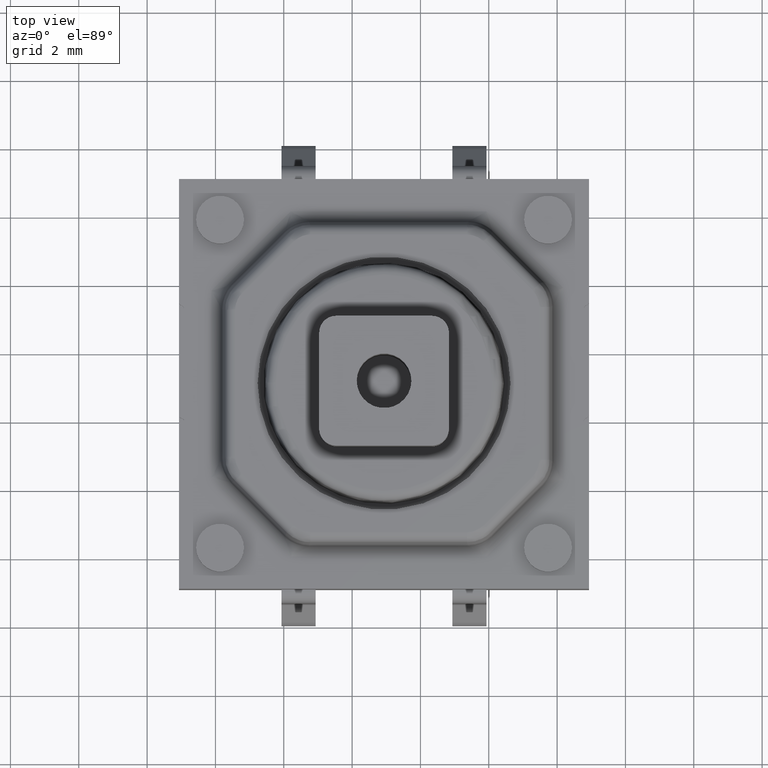
[diagram: clean part render]
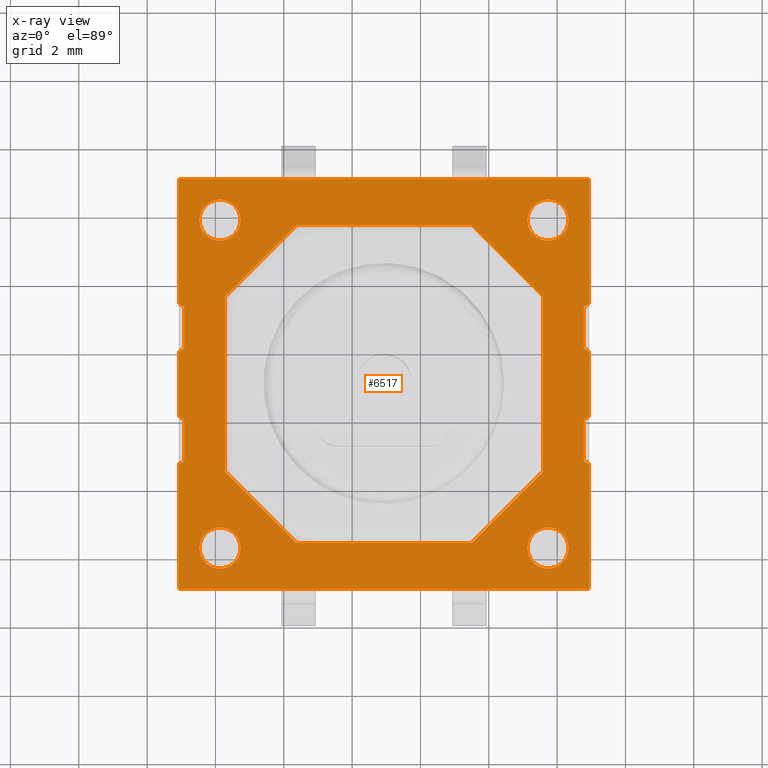
[diagram: x-ray — body ghosted, one internal face saturated and labeled with its STEP entity id]
A machine part, top view, then the same camera in x-ray: the body is ghosted and one INTERNAL B-rep face — a face not visible from any outside direction — is saturated and labeled: STEP entity #6517.
In plain terms, the highlighted planar face has unit normal (0, 0, 1).
Its self-contained STEP definition (entity closure, byte-faithful):
#221=FACE_BOUND('',#1030,.T.);
#222=FACE_BOUND('',#1031,.T.);
#223=FACE_BOUND('',#1032,.T.);
#224=FACE_BOUND('',#1033,.T.);
#225=FACE_BOUND('',#1034,.T.);
#353=PLANE('',#7095);
#608=FACE_OUTER_BOUND('',#1029,.T.);
#1029=EDGE_LOOP('',(#5208,#5209,#5210,#5211,#5212,#5213,#5214,#5215,#5216,
#5217,#5218,#5219,#5220,#5221,#5222,#5223,#5224,#5225,#5226,#5227,#5228,
#5229,#5230,#5231,#5232,#5233,#5234,#5235));
#1030=EDGE_LOOP('',(#5236));
#1031=EDGE_LOOP('',(#5237));
#1032=EDGE_LOOP('',(#5238));
#1033=EDGE_LOOP('',(#5239));
#1034=EDGE_LOOP('',(#5240,#5241,#5242,#5243,#5244,#5245,#5246,#5247));
#1549=LINE('',#10388,#2078);
#1552=LINE('',#10397,#2081);
#1558=LINE('',#10443,#2087);
#1564=LINE('',#10488,#2093);
#1570=LINE('',#10533,#2099);
#1576=LINE('',#10578,#2105);
#1582=LINE('',#10623,#2111);
#1588=LINE('',#10667,#2117);
#1595=LINE('',#10713,#2124);
#1596=LINE('',#10715,#2125);
#1597=LINE('',#10717,#2126);
#1598=LINE('',#10723,#2127);
#1599=LINE('',#10729,#2128);
#1600=LINE('',#10735,#2129);
#1601=LINE('',#10741,#2130);
#1602=LINE('',#10743,#2131);
#1603=LINE('',#10745,#2132);
#1604=LINE('',#10751,#2133);
#1605=LINE('',#10757,#2134);
#1606=LINE('',#10763,#2135);
#2078=VECTOR('',#8327,0.393700787401575);
#2081=VECTOR('',#8336,0.393700787401575);
#2087=VECTOR('',#8366,0.393700787401575);
#2093=VECTOR('',#8396,0.393700787401575);
#2099=VECTOR('',#8426,0.393700787401575);
#2105=VECTOR('',#8456,0.393700787401575);
#2111=VECTOR('',#8486,0.393700787401575);
#2117=VECTOR('',#8516,0.393700787401575);
#2124=VECTOR('',#8549,0.393700787401575);
#2125=VECTOR('',#8550,0.393700787401575);
#2126=VECTOR('',#8551,0.393700787401575);
#2127=VECTOR('',#8556,0.393700787401575);
#2128=VECTOR('',#8561,0.393700787401575);
#2129=VECTOR('',#8566,0.393700787401575);
#2130=VECTOR('',#8571,0.393700787401575);
#2131=VECTOR('',#8572,0.393700787401575);
#2132=VECTOR('',#8573,0.393700787401575);
#2133=VECTOR('',#8578,0.393700787401575);
#2134=VECTOR('',#8583,0.393700787401575);
#2135=VECTOR('',#8588,0.393700787401575);
#2455=CIRCLE('',#7096,0.00393700787401575);
#2456=CIRCLE('',#7097,0.00393700787401575);
#2457=CIRCLE('',#7098,0.00393700787401575);
#2458=CIRCLE('',#7099,0.00393700787401575);
#2459=CIRCLE('',#7100,0.00393700787401575);
#2460=CIRCLE('',#7101,0.00393700787401575);
#2461=CIRCLE('',#7102,0.00393700787401575);
#2462=CIRCLE('',#7103,0.00393700787401575);
#2463=CIRCLE('',#7104,0.00393700787401575);
#2464=CIRCLE('',#7105,0.00393700787401575);
#2465=CIRCLE('',#7106,0.00393700787401575);
#2466=CIRCLE('',#7107,0.00393700787401575);
#2467=CIRCLE('',#7108,0.00393700787401575);
#2468=CIRCLE('',#7109,0.00393700787401575);
#2469=CIRCLE('',#7110,0.00393700787401575);
#2470=CIRCLE('',#7111,0.00393700787401575);
#2471=CIRCLE('',#7112,0.0236220472440945);
#2472=CIRCLE('',#7113,0.0236220472440945);
#2473=CIRCLE('',#7114,0.0236220472440945);
#2474=CIRCLE('',#7115,0.0236220472440945);
#2928=VERTEX_POINT('',#10383);
#2929=VERTEX_POINT('',#10387);
#2932=VERTEX_POINT('',#10395);
#2940=VERTEX_POINT('',#10442);
#2947=VERTEX_POINT('',#10487);
#2954=VERTEX_POINT('',#10532);
#2961=VERTEX_POINT('',#10577);
#2968=VERTEX_POINT('',#10622);
#2978=VERTEX_POINT('',#10709);
#2979=VERTEX_POINT('',#10710);
#2980=VERTEX_POINT('',#10712);
#2981=VERTEX_POINT('',#10714);
#2982=VERTEX_POINT('',#10716);
#2983=VERTEX_POINT('',#10718);
#2984=VERTEX_POINT('',#10720);
#2985=VERTEX_POINT('',#10722);
#2986=VERTEX_POINT('',#10724);
#2987=VERTEX_POINT('',#10726);
#2988=VERTEX_POINT('',#10728);
#2989=VERTEX_POINT('',#10730);
#2990=VERTEX_POINT('',#10732);
#2991=VERTEX_POINT('',#10734);
#2992=VERTEX_POINT('',#10736);
#2993=VERTEX_POINT('',#10738);
#2994=VERTEX_POINT('',#10740);
#2995=VERTEX_POINT('',#10742);
#2996=VERTEX_POINT('',#10744);
#2997=VERTEX_POINT('',#10746);
#2998=VERTEX_POINT('',#10748);
#2999=VERTEX_POINT('',#10750);
#3000=VERTEX_POINT('',#10752);
#3001=VERTEX_POINT('',#10754);
#3002=VERTEX_POINT('',#10756);
#3003=VERTEX_POINT('',#10758);
#3004=VERTEX_POINT('',#10760);
#3005=VERTEX_POINT('',#10762);
#3006=VERTEX_POINT('',#10765);
#3007=VERTEX_POINT('',#10767);
#3008=VERTEX_POINT('',#10769);
#3009=VERTEX_POINT('',#10771);
#3665=EDGE_CURVE('',#2928,#2929,#1549,.T.);
#3670=EDGE_CURVE('',#2932,#2928,#1552,.T.);
#3683=EDGE_CURVE('',#2929,#2940,#1558,.T.);
#3696=EDGE_CURVE('',#2940,#2947,#1564,.T.);
#3709=EDGE_CURVE('',#2947,#2954,#1570,.T.);
#3722=EDGE_CURVE('',#2954,#2961,#1576,.T.);
#3735=EDGE_CURVE('',#2961,#2968,#1582,.T.);
#3748=EDGE_CURVE('',#2968,#2932,#1588,.T.);
#3760=EDGE_CURVE('',#2978,#2979,#2455,.T.);
#3761=EDGE_CURVE('',#2978,#2980,#1595,.T.);
#3762=EDGE_CURVE('',#2980,#2981,#1596,.T.);
#3763=EDGE_CURVE('',#2981,#2982,#1597,.T.);
#3764=EDGE_CURVE('',#2983,#2982,#2456,.T.);
#3765=EDGE_CURVE('',#2984,#2983,#2457,.T.);
#3766=EDGE_CURVE('',#2984,#2985,#1598,.T.);
#3767=EDGE_CURVE('',#2986,#2985,#2458,.T.);
#3768=EDGE_CURVE('',#2987,#2986,#2459,.T.);
#3769=EDGE_CURVE('',#2987,#2988,#1599,.T.);
#3770=EDGE_CURVE('',#2989,#2988,#2460,.T.);
#3771=EDGE_CURVE('',#2990,#2989,#2461,.T.);
#3772=EDGE_CURVE('',#2990,#2991,#1600,.T.);
#3773=EDGE_CURVE('',#2992,#2991,#2462,.T.);
#3774=EDGE_CURVE('',#2993,#2992,#2463,.T.);
#3775=EDGE_CURVE('',#2993,#2994,#1601,.T.);
#3776=EDGE_CURVE('',#2994,#2995,#1602,.T.);
#3777=EDGE_CURVE('',#2995,#2996,#1603,.T.);
#3778=EDGE_CURVE('',#2997,#2996,#2464,.T.);
#3779=EDGE_CURVE('',#2998,#2997,#2465,.T.);
#3780=EDGE_CURVE('',#2998,#2999,#1604,.T.);
#3781=EDGE_CURVE('',#3000,#2999,#2466,.T.);
#3782=EDGE_CURVE('',#3001,#3000,#2467,.T.);
#3783=EDGE_CURVE('',#3001,#3002,#1605,.T.);
#3784=EDGE_CURVE('',#3003,#3002,#2468,.T.);
#3785=EDGE_CURVE('',#3004,#3003,#2469,.T.);
#3786=EDGE_CURVE('',#3004,#3005,#1606,.T.);
#3787=EDGE_CURVE('',#2979,#3005,#2470,.T.);
#3788=EDGE_CURVE('',#3006,#3006,#2471,.T.);
#3789=EDGE_CURVE('',#3007,#3007,#2472,.T.);
#3790=EDGE_CURVE('',#3008,#3008,#2473,.T.);
#3791=EDGE_CURVE('',#3009,#3009,#2474,.T.);
#5208=ORIENTED_EDGE('',*,*,#3760,.F.);
#5209=ORIENTED_EDGE('',*,*,#3761,.T.);
#5210=ORIENTED_EDGE('',*,*,#3762,.T.);
#5211=ORIENTED_EDGE('',*,*,#3763,.T.);
#5212=ORIENTED_EDGE('',*,*,#3764,.F.);
#5213=ORIENTED_EDGE('',*,*,#3765,.F.);
#5214=ORIENTED_EDGE('',*,*,#3766,.T.);
#5215=ORIENTED_EDGE('',*,*,#3767,.F.);
#5216=ORIENTED_EDGE('',*,*,#3768,.F.);
#5217=ORIENTED_EDGE('',*,*,#3769,.T.);
#5218=ORIENTED_EDGE('',*,*,#3770,.F.);
#5219=ORIENTED_EDGE('',*,*,#3771,.F.);
#5220=ORIENTED_EDGE('',*,*,#3772,.T.);
#5221=ORIENTED_EDGE('',*,*,#3773,.F.);
#5222=ORIENTED_EDGE('',*,*,#3774,.F.);
#5223=ORIENTED_EDGE('',*,*,#3775,.T.);
#5224=ORIENTED_EDGE('',*,*,#3776,.T.);
#5225=ORIENTED_EDGE('',*,*,#3777,.T.);
#5226=ORIENTED_EDGE('',*,*,#3778,.F.);
#5227=ORIENTED_EDGE('',*,*,#3779,.F.);
#5228=ORIENTED_EDGE('',*,*,#3780,.T.);
#5229=ORIENTED_EDGE('',*,*,#3781,.F.);
#5230=ORIENTED_EDGE('',*,*,#3782,.F.);
#5231=ORIENTED_EDGE('',*,*,#3783,.T.);
#5232=ORIENTED_EDGE('',*,*,#3784,.F.);
#5233=ORIENTED_EDGE('',*,*,#3785,.F.);
#5234=ORIENTED_EDGE('',*,*,#3786,.T.);
#5235=ORIENTED_EDGE('',*,*,#3787,.F.);
#5236=ORIENTED_EDGE('',*,*,#3788,.T.);
#5237=ORIENTED_EDGE('',*,*,#3789,.T.);
#5238=ORIENTED_EDGE('',*,*,#3790,.T.);
#5239=ORIENTED_EDGE('',*,*,#3791,.T.);
#5240=ORIENTED_EDGE('',*,*,#3670,.F.);
#5241=ORIENTED_EDGE('',*,*,#3748,.F.);
#5242=ORIENTED_EDGE('',*,*,#3735,.F.);
#5243=ORIENTED_EDGE('',*,*,#3722,.F.);
#5244=ORIENTED_EDGE('',*,*,#3709,.F.);
#5245=ORIENTED_EDGE('',*,*,#3696,.F.);
#5246=ORIENTED_EDGE('',*,*,#3683,.F.);
#5247=ORIENTED_EDGE('',*,*,#3665,.F.);
#6517=ADVANCED_FACE('',(#608,#221,#222,#223,#224,#225),#353,.F.);
#7095=AXIS2_PLACEMENT_3D('',#10708,#8545,#8546);
#7096=AXIS2_PLACEMENT_3D('',#10711,#8547,#8548);
#7097=AXIS2_PLACEMENT_3D('',#10719,#8552,#8553);
#7098=AXIS2_PLACEMENT_3D('',#10721,#8554,#8555);
#7099=AXIS2_PLACEMENT_3D('',#10725,#8557,#8558);
#7100=AXIS2_PLACEMENT_3D('',#10727,#8559,#8560);
#7101=AXIS2_PLACEMENT_3D('',#10731,#8562,#8563);
#7102=AXIS2_PLACEMENT_3D('',#10733,#8564,#8565);
#7103=AXIS2_PLACEMENT_3D('',#10737,#8567,#8568);
#7104=AXIS2_PLACEMENT_3D('',#10739,#8569,#8570);
#7105=AXIS2_PLACEMENT_3D('',#10747,#8574,#8575);
#7106=AXIS2_PLACEMENT_3D('',#10749,#8576,#8577);
#7107=AXIS2_PLACEMENT_3D('',#10753,#8579,#8580);
#7108=AXIS2_PLACEMENT_3D('',#10755,#8581,#8582);
#7109=AXIS2_PLACEMENT_3D('',#10759,#8584,#8585);
#7110=AXIS2_PLACEMENT_3D('',#10761,#8586,#8587);
#7111=AXIS2_PLACEMENT_3D('',#10764,#8589,#8590);
#7112=AXIS2_PLACEMENT_3D('',#10766,#8591,#8592);
#7113=AXIS2_PLACEMENT_3D('',#10768,#8593,#8594);
#7114=AXIS2_PLACEMENT_3D('',#10770,#8595,#8596);
#7115=AXIS2_PLACEMENT_3D('',#10772,#8597,#8598);
#8327=DIRECTION('',(5.02396351665181E-17,-1.,1.11022302462516E-16));
#8336=DIRECTION('',(0.707106781186548,-0.707106781186547,1.96261557335472E-17));
#8366=DIRECTION('',(-0.707106781186548,-0.707106781186547,1.3738309013483E-16));
#8396=DIRECTION('',(-1.,-2.6174120796207E-16,8.32667268468868E-17));
#8426=DIRECTION('',(-0.707106781186548,0.707106781186547,-1.96261557335472E-17));
#8456=DIRECTION('',(-5.02396351665181E-17,1.,-1.11022302462516E-16));
#8486=DIRECTION('',(0.707106781186548,0.707106781186547,-1.3738309013483E-16));
#8516=DIRECTION('',(1.,5.02396351665181E-17,-8.32667268468868E-17));
#8545=DIRECTION('center_axis',(8.32667268468867E-17,1.11022302462516E-16,
1.));
#8546=DIRECTION('ref_axis',(-1.,5.55111512312578E-17,8.32667268468867E-17));
#8547=DIRECTION('center_axis',(8.32667268468867E-17,1.11022302462516E-16,
1.));
#8548=DIRECTION('ref_axis',(-1.,5.55111512312578E-17,8.32667268468867E-17));
#8549=DIRECTION('',(-5.55111512312578E-17,-1.,1.11022302462516E-16));
#8550=DIRECTION('',(-1.,5.55111512312578E-17,8.32667268468867E-17));
#8551=DIRECTION('',(5.55111512312578E-17,1.,-1.11022302462516E-16));
#8552=DIRECTION('center_axis',(8.32667268468867E-17,1.11022302462516E-16,
1.));
#8553=DIRECTION('ref_axis',(1.,-5.55111512312578E-17,-8.32667268468867E-17));
#8554=DIRECTION('center_axis',(-8.32667268468867E-17,-1.11022302462516E-16,
-1.));
#8555=DIRECTION('ref_axis',(0.707106781186547,-0.707106781186547,1.96261557335472E-17));
#8556=DIRECTION('',(5.55111512312578E-17,1.,-1.11022302462516E-16));
#8557=DIRECTION('center_axis',(-8.32667268468867E-17,-1.11022302462516E-16,
-1.));
#8558=DIRECTION('ref_axis',(0.707106781186555,0.70710678118654,-1.3738309013483E-16));
#8559=DIRECTION('center_axis',(8.32667268468867E-17,1.11022302462516E-16,
1.));
#8560=DIRECTION('ref_axis',(1.,-5.55111512312578E-17,-8.32667268468867E-17));
#8561=DIRECTION('',(5.55111512312578E-17,1.,-1.11022302462516E-16));
#8562=DIRECTION('center_axis',(8.32667268468867E-17,1.11022302462516E-16,
1.));
#8563=DIRECTION('ref_axis',(1.,-5.55111512312578E-17,-8.32667268468867E-17));
#8564=DIRECTION('center_axis',(-8.32667268468867E-17,-1.11022302462516E-16,
-1.));
#8565=DIRECTION('ref_axis',(0.707106781186548,-0.707106781186546,1.9626155733547E-17));
#8566=DIRECTION('',(5.55111512312578E-17,1.,-1.11022302462516E-16));
#8567=DIRECTION('center_axis',(-8.32667268468867E-17,-1.11022302462516E-16,
-1.));
#8568=DIRECTION('ref_axis',(0.707106781186547,0.707106781186547,-1.3738309013483E-16));
#8569=DIRECTION('center_axis',(8.32667268468867E-17,1.11022302462516E-16,
1.));
#8570=DIRECTION('ref_axis',(1.,-5.55111512312578E-17,-8.32667268468867E-17));
#8571=DIRECTION('',(5.55111512312578E-17,1.,-1.11022302462516E-16));
#8572=DIRECTION('',(1.,-5.55111512312578E-17,-8.32667268468867E-17));
#8573=DIRECTION('',(-5.55111512312578E-17,-1.,1.11022302462516E-16));
#8574=DIRECTION('center_axis',(8.32667268468867E-17,1.11022302462516E-16,
1.));
#8575=DIRECTION('ref_axis',(0.707106781186547,-0.707106781186547,1.96261557335472E-17));
#8576=DIRECTION('center_axis',(-8.32667268468867E-17,-1.11022302462516E-16,
-1.));
#8577=DIRECTION('ref_axis',(1.,-5.55111512312578E-17,-8.32667268468867E-17));
#8578=DIRECTION('',(-5.55111512312578E-17,-1.,1.11022302462516E-16));
#8579=DIRECTION('center_axis',(-8.32667268468867E-17,-1.11022302462516E-16,
-1.));
#8580=DIRECTION('ref_axis',(-0.707106781186555,-0.70710678118654,1.3738309013483E-16));
#8581=DIRECTION('center_axis',(8.32667268468867E-17,1.11022302462516E-16,
1.));
#8582=DIRECTION('ref_axis',(-1.,5.55111512312578E-17,8.32667268468867E-17));
#8583=DIRECTION('',(-5.55111512312578E-17,-1.,1.11022302462516E-16));
#8584=DIRECTION('center_axis',(8.32667268468867E-17,1.11022302462516E-16,
1.));
#8585=DIRECTION('ref_axis',(0.707106781186548,-0.707106781186546,1.9626155733547E-17));
#8586=DIRECTION('center_axis',(-8.32667268468867E-17,-1.11022302462516E-16,
-1.));
#8587=DIRECTION('ref_axis',(1.,-5.55111512312578E-17,-8.32667268468867E-17));
#8588=DIRECTION('',(-5.55111512312578E-17,-1.,1.11022302462516E-16));
#8589=DIRECTION('center_axis',(-8.32667268468867E-17,-1.11022302462516E-16,
-1.));
#8590=DIRECTION('ref_axis',(-0.707106781186555,-0.70710678118654,1.3738309013483E-16));
#8591=DIRECTION('center_axis',(8.32667268468867E-17,1.11022302462516E-16,
1.));
#8592=DIRECTION('ref_axis',(1.,-5.55111512312578E-17,-8.32667268468867E-17));
#8593=DIRECTION('center_axis',(8.32667268468867E-17,1.11022302462516E-16,
1.));
#8594=DIRECTION('ref_axis',(1.,-5.55111512312578E-17,-8.32667268468867E-17));
#8595=DIRECTION('center_axis',(8.32667268468867E-17,1.11022302462516E-16,
1.));
#8596=DIRECTION('ref_axis',(1.,-5.55111512312578E-17,-8.32667268468867E-17));
#8597=DIRECTION('center_axis',(8.32667268468867E-17,1.11022302462516E-16,
1.));
#8598=DIRECTION('ref_axis',(1.,-5.55111512312578E-17,-8.32667268468867E-17));
#10383=CARTESIAN_POINT('',(-0.0163922233613935,-0.0941469958097537,0.13119343396936));
#10387=CARTESIAN_POINT('',(-0.0163922233613934,-0.295917796447768,0.13119343396936));
#10388=CARTESIAN_POINT('',(-0.0163922233613934,-0.246698167830705,0.13119343396936));
#10395=CARTESIAN_POINT('',(-0.0985776891841184,-0.0119615299870287,0.13119343396936));
#10397=CARTESIAN_POINT('',(-0.0360737476355389,-0.0744654715356082,0.13119343396936));
#10442=CARTESIAN_POINT('',(-0.0985776891841184,-0.378103262270493,0.13119343396936));
#10443=CARTESIAN_POINT('',(-0.078896164909973,-0.358421737996348,0.13119343396936));
#10487=CARTESIAN_POINT('',(-0.300348489822133,-0.378103262270493,0.13119343396936));
#10488=CARTESIAN_POINT('',(-0.25112886120507,-0.378103262270493,0.13119343396936));
#10532=CARTESIAN_POINT('',(-0.382533955644858,-0.295917796447768,0.13119343396936));
#10533=CARTESIAN_POINT('',(-0.362852431370713,-0.315599320721914,0.13119343396936));
#10577=CARTESIAN_POINT('',(-0.382533955644858,-0.0941469958097537,0.13119343396936));
#10578=CARTESIAN_POINT('',(-0.382533955644858,-0.143366624426817,0.13119343396936));
#10622=CARTESIAN_POINT('',(-0.300348489822133,-0.0119615299870287,0.13119343396936));
#10623=CARTESIAN_POINT('',(-0.320030014096279,-0.0316430542611742,0.13119343396936));
#10667=CARTESIAN_POINT('',(-0.147797317801182,-0.0119615299870287,0.13119343396936));
#10708=CARTESIAN_POINT('Origin',(-0.199463089503126,-0.195032396128761,
0.13119343396936));
#10709=CARTESIAN_POINT('',(0.0367573829378192,-0.289270552322083,0.13119343396936));
#10710=CARTESIAN_POINT('',(0.0338046270323074,-0.285458560839595,0.13119343396936));
#10711=CARTESIAN_POINT('Origin',(0.0328203750638034,-0.289270552322083,
0.13119343396936));
#10712=CARTESIAN_POINT('',(0.0367573829378192,-0.431252868569706,0.13119343396936));
#10713=CARTESIAN_POINT('',(0.0367573829378192,0.0411880763121839,0.13119343396936));
#10714=CARTESIAN_POINT('',(-0.435683561944071,-0.431252868569706,0.13119343396936));
#10715=CARTESIAN_POINT('',(0.0367573829378192,-0.431252868569706,0.13119343396936));
#10716=CARTESIAN_POINT('',(-0.435683561944071,-0.289270552322083,0.13119343396936));
#10717=CARTESIAN_POINT('',(-0.435683561944071,-0.431252868569706,0.13119343396936));
#10718=CARTESIAN_POINT('',(-0.432730806038559,-0.285458560839595,0.13119343396936));
#10719=CARTESIAN_POINT('Origin',(-0.431746554070055,-0.289270552322083,
0.13119343396936));
#10720=CARTESIAN_POINT('',(-0.429778050133047,-0.281646569357107,0.13119343396936));
#10721=CARTESIAN_POINT('Origin',(-0.433715058007063,-0.281646569357107,
0.13119343396936));
#10722=CARTESIAN_POINT('',(-0.429778050133047,-0.238339482742934,0.13119343396936));
#10723=CARTESIAN_POINT('',(-0.429778050133047,-0.21471743549884,0.13119343396936));
#10724=CARTESIAN_POINT('',(-0.432730806038559,-0.234527491260447,0.13119343396936));
#10725=CARTESIAN_POINT('Origin',(-0.433715058007063,-0.238339482742934,
0.13119343396936));
#10726=CARTESIAN_POINT('',(-0.435683561944071,-0.230715499777959,0.13119343396936));
#10727=CARTESIAN_POINT('Origin',(-0.431746554070055,-0.230715499777959,
0.13119343396936));
#10728=CARTESIAN_POINT('',(-0.435683561944071,-0.159349292479563,0.13119343396936));
#10729=CARTESIAN_POINT('',(-0.435683561944071,-0.431252868569706,0.13119343396936));
#10730=CARTESIAN_POINT('',(-0.432730806038559,-0.155537300997075,0.13119343396936));
#10731=CARTESIAN_POINT('Origin',(-0.431746554070055,-0.159349292479563,
0.13119343396936));
#10732=CARTESIAN_POINT('',(-0.429778050133047,-0.151725309514588,0.13119343396936));
#10733=CARTESIAN_POINT('Origin',(-0.433715058007063,-0.151725309514588,
0.13119343396936));
#10734=CARTESIAN_POINT('',(-0.429778050133047,-0.108418222900415,0.13119343396936));
#10735=CARTESIAN_POINT('',(-0.429778050133047,-0.14975680557758,0.13119343396936));
#10736=CARTESIAN_POINT('',(-0.432730806038559,-0.104606231417927,0.13119343396936));
#10737=CARTESIAN_POINT('Origin',(-0.433715058007063,-0.108418222900415,
0.13119343396936));
#10738=CARTESIAN_POINT('',(-0.435683561944071,-0.100794239935439,0.13119343396936));
#10739=CARTESIAN_POINT('Origin',(-0.431746554070055,-0.100794239935439,
0.13119343396936));
#10740=CARTESIAN_POINT('',(-0.435683561944071,0.0411880763121839,0.13119343396936));
#10741=CARTESIAN_POINT('',(-0.435683561944071,-0.431252868569706,0.13119343396936));
#10742=CARTESIAN_POINT('',(0.0367573829378192,0.0411880763121839,0.13119343396936));
#10743=CARTESIAN_POINT('',(-0.435683561944071,0.0411880763121839,0.13119343396936));
#10744=CARTESIAN_POINT('',(0.0367573829378192,-0.100544207152383,0.13119343396936));
#10745=CARTESIAN_POINT('',(0.0367573829378192,0.0411880763121839,0.13119343396936));
#10746=CARTESIAN_POINT('',(0.0338046270323073,-0.104356198634871,0.13119343396936));
#10747=CARTESIAN_POINT('Origin',(0.0328203750638034,-0.100544207152383,
0.13119343396936));
#10748=CARTESIAN_POINT('',(0.0308518711267955,-0.108168190117358,0.13119343396936));
#10749=CARTESIAN_POINT('Origin',(0.0347888790008113,-0.108168190117358,
0.13119343396936));
#10750=CARTESIAN_POINT('',(0.0308518711267955,-0.151725309514588,0.13119343396936));
#10751=CARTESIAN_POINT('',(0.0308518711267955,-0.175347356758682,0.13119343396936));
#10752=CARTESIAN_POINT('',(0.0338046270323074,-0.155537300997075,0.13119343396936));
#10753=CARTESIAN_POINT('Origin',(0.0347888790008113,-0.151725309514588,
0.13119343396936));
#10754=CARTESIAN_POINT('',(0.0367573829378192,-0.159349292479563,0.13119343396936));
#10755=CARTESIAN_POINT('Origin',(0.0328203750638034,-0.159349292479563,
0.13119343396936));
#10756=CARTESIAN_POINT('',(0.0367573829378192,-0.230465466994903,0.13119343396936));
#10757=CARTESIAN_POINT('',(0.0367573829378192,0.0411880763121839,0.13119343396936));
#10758=CARTESIAN_POINT('',(0.0338046270323073,-0.23427745847739,0.13119343396936));
#10759=CARTESIAN_POINT('Origin',(0.0328203750638034,-0.230465466994903,
0.13119343396936));
#10760=CARTESIAN_POINT('',(0.0308518711267955,-0.238089449959878,0.13119343396936));
#10761=CARTESIAN_POINT('Origin',(0.0347888790008113,-0.238089449959878,
0.13119343396936));
#10762=CARTESIAN_POINT('',(0.0308518711267955,-0.281646569357107,0.13119343396936));
#10763=CARTESIAN_POINT('',(0.0308518711267955,-0.240307986679942,0.13119343396936));
#10764=CARTESIAN_POINT('Origin',(0.0347888790008113,-0.281646569357107,
0.13119343396936));
#10765=CARTESIAN_POINT('',(-0.0341087587944644,-0.384008774081517,0.13119343396936));
#10766=CARTESIAN_POINT('Origin',(-0.0104867115503699,-0.384008774081517,
0.13119343396936));
#10767=CARTESIAN_POINT('',(-0.412061514699976,-0.384008774081517,0.13119343396936));
#10768=CARTESIAN_POINT('Origin',(-0.388439467455882,-0.384008774081517,
0.13119343396936));
#10769=CARTESIAN_POINT('',(-0.412061514699976,-0.00605601817600503,0.13119343396936));
#10770=CARTESIAN_POINT('Origin',(-0.388439467455882,-0.00605601817600505,
0.13119343396936));
#10771=CARTESIAN_POINT('',(-0.0341087587944644,-0.0060560181760051,0.13119343396936));
#10772=CARTESIAN_POINT('Origin',(-0.0104867115503699,-0.0060560181760051,
0.13119343396936));